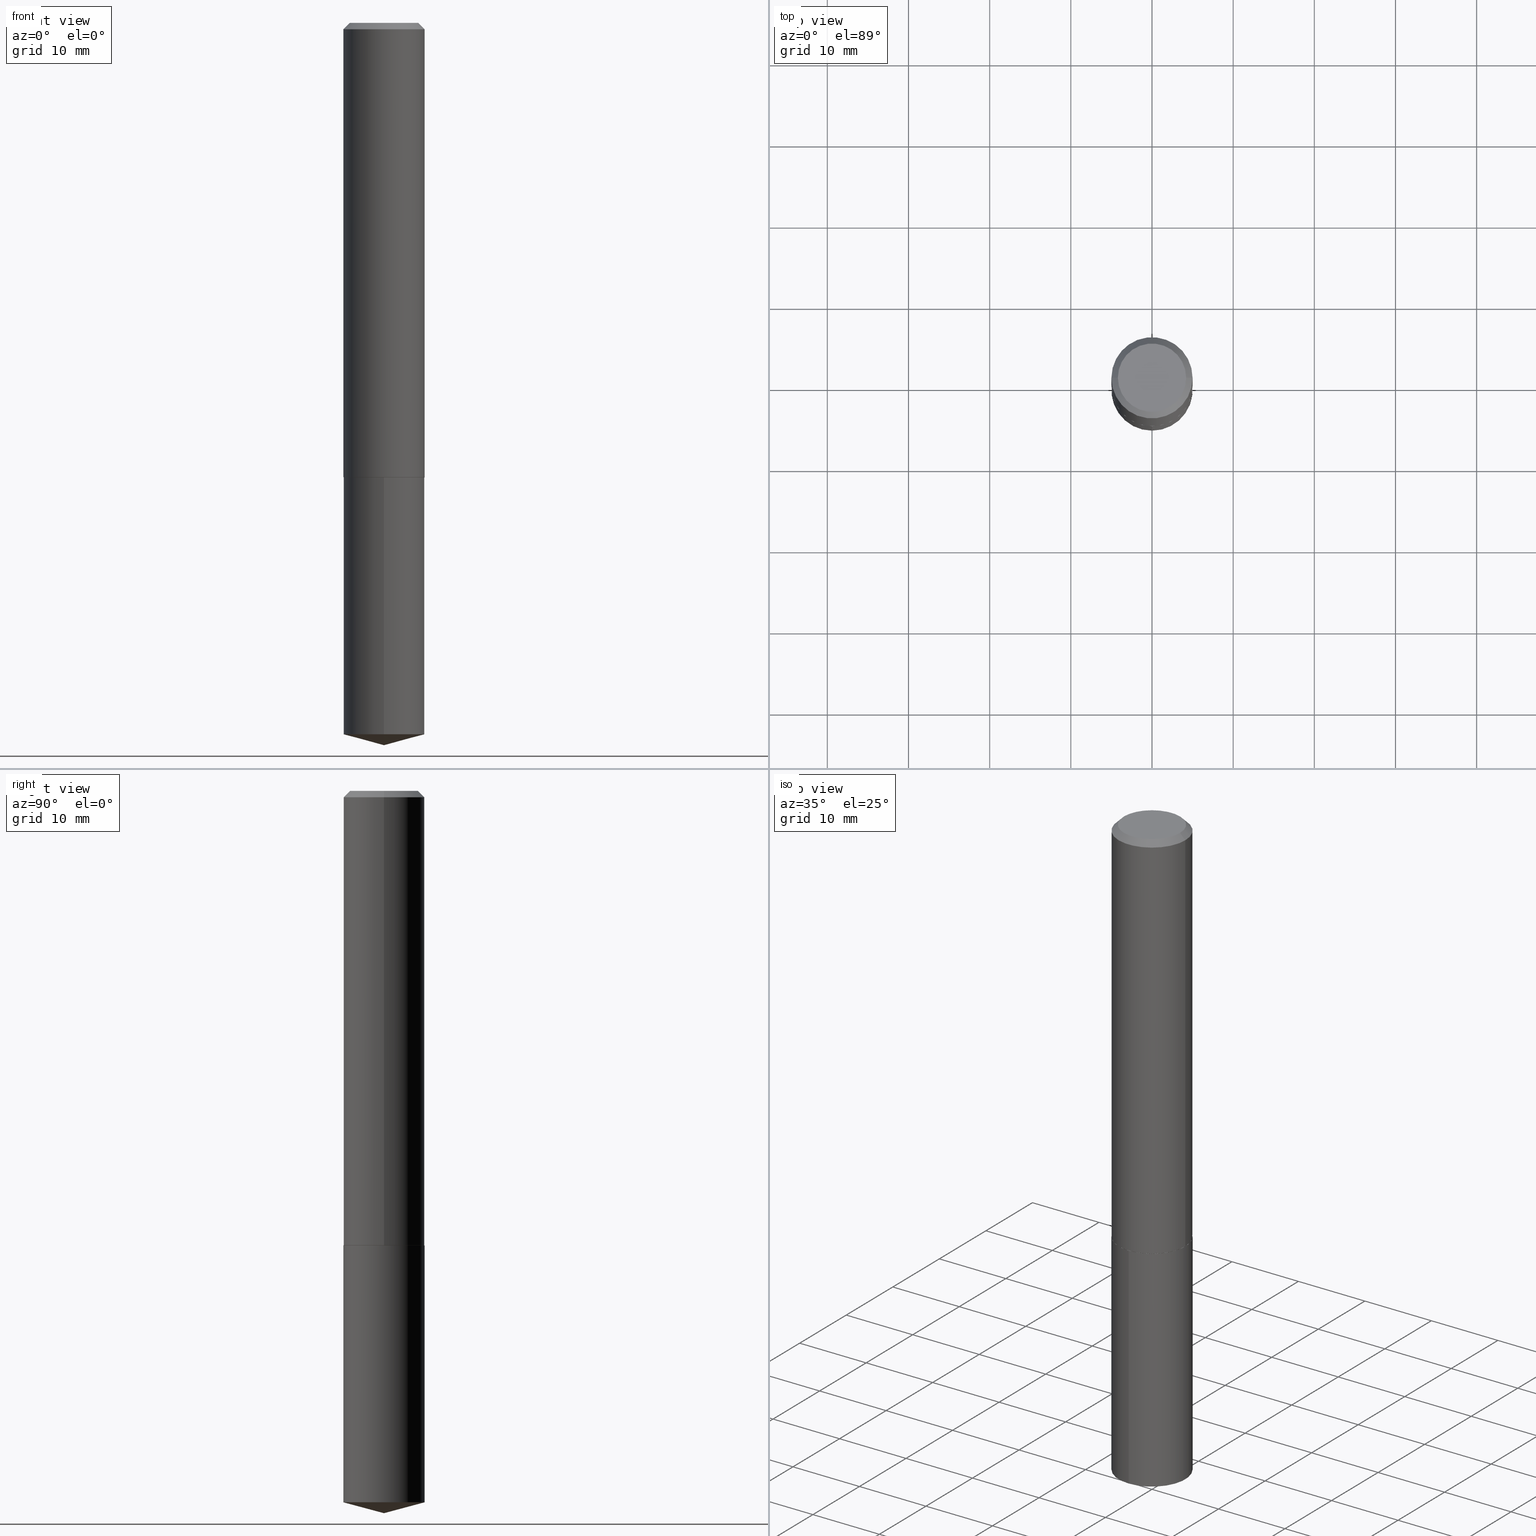
[diagram: canonical four-view strip — front | top / right | iso, engineering-drawing reading convention]
A machine part, canonical four-view strip (front | top / right | iso — engineering-drawing reading convention). The complete STEP part file that produces these views, byte-faithful:
ISO-10303-21;
HEADER;
FILE_DESCRIPTION (( 'STEP AP203' ),
    '1' );
FILE_NAME ('69035.STEP',
    '2024-04-23T14:32:00',
    ( '' ),
    ( '' ),
    'SwSTEP 2.0',
    'SolidWorks 2023',
    '' );
FILE_SCHEMA (( 'CONFIG_CONTROL_DESIGN' ));
ENDSEC;

DATA;
#1 = DIRECTION ( 'NONE',  ( -6.982962677686265922E-15, -1.000000000000000000, 3.510303681827636883E-15 ) ) ;
#2 = ADVANCED_FACE ( 'NONE', ( #202 ), #388, .F. ) ;
#3 = CYLINDRICAL_SURFACE ( 'NONE', #85, 0.1968500000000001915 ) ;
#4 = CARTESIAN_POINT ( 'NONE',  ( 5.391525076996369035E-29, -7.697668907747481548E-15, -2.204699999999999438 ) ) ;
#5 = CALENDAR_DATE ( 2024, 23, 4 ) ;
#6 = FACE_OUTER_BOUND ( 'NONE', #207, .T. ) ;
#7 = DIRECTION ( 'NONE',  ( -2.445468806185136877E-29, 3.491481338843145188E-15, 1.000000000000000000 ) ) ;
#8 = APPROVAL_STATUS ( 'not_yet_approved' ) ;
#9 = DIRECTION ( 'NONE',  ( -2.445468806185136597E-29, 3.491481338843145583E-15, 1.000000000000000000 ) ) ;
#10 = AXIS2_PLACEMENT_3D ( 'NONE', #104, #51, #142 ) ;
#11 = PERSON_AND_ORGANIZATION_ROLE ( 'creator' ) ;
#12 = APPROVAL_PERSON_ORGANIZATION ( #45, #171, #244 ) ;
#13 = FACE_OUTER_BOUND ( 'NONE', #126, .T. ) ;
#14 =( NAMED_UNIT ( * ) SI_UNIT ( $, .STERADIAN. ) SOLID_ANGLE_UNIT ( ) );
#15 = CARTESIAN_POINT ( 'NONE',  ( -0.1968500000000000250, 1.265487411263692705E-15, -0.03125000000000022898 ) ) ;
#16 = CONICAL_SURFACE ( 'NONE', #228, 0.1968500000000003303, 0.7853981633965604336 ) ;
#17 =( NAMED_UNIT ( * ) PLANE_ANGLE_UNIT ( ) SI_UNIT ( $, .RADIAN. ) );
#18 = AXIS2_PLACEMENT_3D ( 'NONE', #373, #278, #111 ) ;
#19 = CIRCLE ( 'NONE', #36, 0.1963500000000007739 ) ;
#20 = EDGE_CURVE ( 'NONE', #128, #374, #288, .T. ) ;
#21 = ORIENTED_EDGE ( 'NONE', *, *, #296, .F. ) ;
#22 = PLANE ( 'NONE',  #247 ) ;
#23 = APPLICATION_CONTEXT ( 'configuration controlled 3d designs of mechanical parts and assemblies' ) ;
#24 = ORIENTED_EDGE ( 'NONE', *, *, #242, .T. ) ;
#25 = ORIENTED_EDGE ( 'NONE', *, *, #283, .F. ) ;
#26 = LENGTH_MEASURE_WITH_UNIT ( LENGTH_MEASURE( 0.02539999999999999897 ), #382 );
#27 = CIRCLE ( 'NONE', #34, 0.1968500000000000250 ) ;
#28 = ADVANCED_BREP_SHAPE_REPRESENTATION ( '69035', ( #198, #86, #324 ), #302 ) ;
#29 = ORIENTED_EDGE ( 'NONE', *, *, #310, .T. ) ;
#30 = DIRECTION ( 'NONE',  ( -6.982962677686265133E-15, -1.000000000000000000, 2.775563112689116301E-15 ) ) ;
#31 = UNCERTAINTY_MEASURE_WITH_UNIT (LENGTH_MEASURE( 1.000000000000000082E-05 ), #287, 'distance_accuracy_value', 'NONE');
#32 = DIRECTION ( 'NONE',  ( -6.982962677686265133E-15, -1.000000000000000000, 4.163344669033674845E-15 ) ) ;
#33 = VERTEX_POINT ( 'NONE', #315 ) ;
#34 = AXIS2_PLACEMENT_3D ( 'NONE', #262, #240, #93 ) ;
#35 = DIRECTION ( 'NONE',  ( 1.000000000000000000, -6.982962677686266711E-15, 4.876184333594739131E-29 ) ) ;
#36 = AXIS2_PLACEMENT_3D ( 'NONE', #334, #158, #246 ) ;
#37 = CYLINDRICAL_SURFACE ( 'NONE', #89, 0.1968500000000000250 ) ;
#38 = PERSON_AND_ORGANIZATION ( #359, #54 ) ;
#39 = DIRECTION ( 'NONE',  ( 2.445539438207697217E-29, -3.491380189766713232E-15, -1.000000000000000000 ) ) ;
#40 = PRODUCT ( '69035', '69035', '', ( #216 ) ) ;
#41 = CARTESIAN_POINT ( 'NONE',  ( 0.000000000000000000, 0.000000000000000000, 0.000000000000000000 ) ) ;
#42 = ADVANCED_FACE ( 'NONE', ( #153 ), #37, .T. ) ;
#43 = DIRECTION ( 'NONE',  ( 6.863315791527691893E-15, 0.9659258262890693114, 0.2588190451025171313 ) ) ;
#44 = AXIS2_PLACEMENT_3D ( 'NONE', #84, #193, #269 ) ;
#45 = PERSON_AND_ORGANIZATION ( #359, #54 ) ;
#46 = EDGE_LOOP ( 'NONE', ( #384, #238, #237, #127 ) ) ;
#47 = DIRECTION ( 'NONE',  ( -6.982962677686265922E-15, -1.000000000000000000, 3.510303681827636883E-15 ) ) ;
#48 = APPROVAL_STATUS ( 'not_yet_approved' ) ;
#49 = APPROVAL_ROLE ( '' ) ;
#50 = CARTESIAN_POINT ( 'NONE',  ( 5.390302342593277355E-29, -7.695923167078060833E-15, -2.204199999999999715 ) ) ;
#51 = DIRECTION ( 'NONE',  ( -2.445468806185136597E-29, 3.491481338843145583E-15, 1.000000000000000000 ) ) ;
#52 = CC_DESIGN_PERSON_AND_ORGANIZATION_ASSIGNMENT ( #38, #11, ( #249 ) ) ;
#53 = CIRCLE ( 'NONE', #275, 0.1968500000000000250 ) ;
#54 = ORGANIZATION ( 'UNSPECIFIED', 'UNSPECIFIED', '' ) ;
#55 = LINE ( 'NONE', #139, #281 ) ;
#56 = CLOSED_SHELL ( 'NONE', ( #201, #312, #195, #379, #230, #74, #251, #147 ) ) ;
#57 = PRODUCT_DEFINITION_FORMATION_WITH_SPECIFIED_SOURCE ( 'ANY', '', #40, .NOT_KNOWN. ) ;
#58 = COORDINATED_UNIVERSAL_TIME_OFFSET ( 5, 0, .BEHIND. ) ;
#59 = ORIENTED_EDGE ( 'NONE', *, *, #94, .T. ) ;
#60 = CARTESIAN_POINT ( 'NONE',  ( 0.1968500000000000250, -1.483704994941390709E-15, -0.03125000000000022898 ) ) ;
#61 = APPROVAL ( #48, 'UNSPECIFIED' ) ;
#62 = APPROVAL_PERSON_ORGANIZATION ( #300, #183, #49 ) ;
#63 = DIRECTION ( 'NONE',  ( -2.445468806185136597E-29, 3.491481338843145583E-15, 1.000000000000000000 ) ) ;
#64 = CARTESIAN_POINT ( 'NONE',  ( 5.391525076996369035E-29, -7.697668907747481548E-15, -2.204699999999999438 ) ) ;
#65 = VERTEX_POINT ( 'NONE', #148 ) ;
#66 = EDGE_CURVE ( 'NONE', #340, #378, #27, .T. ) ;
#67 = DIRECTION ( 'NONE',  ( 1.000000000000000000, -6.982962677686266711E-15, 4.876176775795935793E-29 ) ) ;
#68 = EDGE_LOOP ( 'NONE', ( #138, #122, #59, #185 ) ) ;
#69 = DIRECTION ( 'NONE',  ( -2.445539438207697497E-29, 3.491380189766713232E-15, 1.000000000000000000 ) ) ;
#70 = VECTOR ( 'NONE', #170, 39.37007874015748143 ) ;
#71 = DIRECTION ( 'NONE',  ( 0.000000000000000000, 0.000000000000000000, 1.000000000000000000 ) ) ;
#72 = ORIENTED_EDGE ( 'NONE', *, *, #94, .F. ) ;
#73 = DIRECTION ( 'NONE',  ( -1.000000000000000000, 6.982962677686265922E-15, -4.876176775795935793E-29 ) ) ;
#74 = ADVANCED_FACE ( 'NONE', ( #352 ), #3, .T. ) ;
#75 = LINE ( 'NONE', #307, #152 ) ;
#76 = CC_DESIGN_DATE_AND_TIME_ASSIGNMENT ( #339, #162, ( #294 ) ) ;
#77 = FACE_OUTER_BOUND ( 'NONE', #390, .T. ) ;
#78 = VECTOR ( 'NONE', #110, 39.37007874015748143 ) ;
#79 = AXIS2_PLACEMENT_3D ( 'NONE', #335, #229, #196 ) ;
#80 = LOCAL_TIME ( 10, 32, 0.000000000000000000, #58 ) ;
#81 = CARTESIAN_POINT ( 'NONE',  ( 0.1968500000000003303, -9.070519370180605597E-15, -2.204199999999999715 ) ) ;
#82 = ADVANCED_FACE ( 'NONE', ( #256 ), #311, .T. ) ;
#83 = FACE_OUTER_BOUND ( 'NONE', #150, .T. ) ;
#84 = CARTESIAN_POINT ( 'NONE',  ( -5.839929314523301814E-48, 8.337871319499262079E-34, 2.388061258337385659E-19 ) ) ;
#85 = AXIS2_PLACEMENT_3D ( 'NONE', #357, #318, #67 ) ;
#86 = MANIFOLD_SOLID_BREP ( 'Body-Move/Copy2[2]', #56 ) ;
#87 = APPLICATION_PROTOCOL_DEFINITION ( 'international standard', 'config_control_design', 1994, #369 ) ;
#88 = ORIENTED_EDGE ( 'NONE', *, *, #168, .F. ) ;
#89 = AXIS2_PLACEMENT_3D ( 'NONE', #124, #322, #32 ) ;
#90 = CC_DESIGN_APPROVAL ( #183, ( #249 ) ) ;
#91 = CARTESIAN_POINT ( 'NONE',  ( -1.374596203102487571E-15, -0.1968500000000076855, -2.204699999999998550 ) ) ;
#92 = DIRECTION ( 'NONE',  ( -6.745023994389837555E-15, -0.9659258262890675351, 0.2588190451025239036 ) ) ;
#93 = DIRECTION ( 'NONE',  ( -6.982962677686265133E-15, -1.000000000000000000, 4.163344669033674845E-15 ) ) ;
#94 = EDGE_CURVE ( 'NONE', #386, #320, #114, .T. ) ;
#95 = DIRECTION ( 'NONE',  ( -6.982962677686265133E-15, -1.000000000000000000, 4.163344669033674845E-15 ) ) ;
#96 = VERTEX_POINT ( 'NONE', #177 ) ;
#97 = CARTESIAN_POINT ( 'NONE',  ( -0.1655999999999999972, 1.210933015344269141E-15, 2.388061258254609190E-19 ) ) ;
#98 = PERSON_AND_ORGANIZATION_ROLE ( 'design_supplier' ) ;
#99 = VERTEX_POINT ( 'NONE', #102 ) ;
#100 = EDGE_CURVE ( 'NONE', #374, #65, #293, .T. ) ;
#101 = CONICAL_SURFACE ( 'NONE', #204, 0.1968500000000000250, 0.7853981633974447263 ) ;
#102 = CARTESIAN_POINT ( 'NONE',  ( 0.1963500000000007739, -9.068773629511186460E-15, -2.204700000000000326 ) ) ;
#103 = DIRECTION ( 'NONE',  ( 1.000000000000000000, -6.982962677686271444E-15, 0.000000000000000000 ) ) ;
#104 = CARTESIAN_POINT ( 'NONE',  ( 5.390302342593277355E-29, -7.695923167078060833E-15, -2.204199999999999715 ) ) ;
#105 = COORDINATED_UNIVERSAL_TIME_OFFSET ( 5, 0, .BEHIND. ) ;
#106 = DIRECTION ( 'NONE',  ( -2.445468806185136597E-29, 3.491481338843145583E-15, 1.000000000000000000 ) ) ;
#107 = LOCAL_TIME ( 10, 32, 0.000000000000000000, #385 ) ;
#108 = COORDINATED_UNIVERSAL_TIME_OFFSET ( 5, 0, .BEHIND. ) ;
#109 = PRODUCT_DEFINITION_SHAPE ( 'NONE', 'NONE',  #249 ) ;
#110 = DIRECTION ( 'NONE',  ( -2.445539438207697497E-29, 3.491380189766713232E-15, 1.000000000000000000 ) ) ;
#111 = DIRECTION ( 'NONE',  ( 1.000000000000000000, -6.982962677686271444E-15, 0.000000000000000000 ) ) ;
#112 = DIMENSIONAL_EXPONENTS ( 1.000000000000000000, 0.000000000000000000, 0.000000000000000000, 0.000000000000000000, 0.000000000000000000, 0.000000000000000000, 0.000000000000000000 ) ;
#113 = CC_DESIGN_PERSON_AND_ORGANIZATION_ASSIGNMENT ( #190, #241, ( #57 ) ) ;
#114 = CIRCLE ( 'NONE', #254, 0.1968500000000000250 ) ;
#115 = LOCAL_TIME ( 10, 32, 0.000000000000000000, #105 ) ;
#116 = ORIENTED_EDGE ( 'NONE', *, *, #145, .T. ) ;
#117 = APPROVAL_ROLE ( '' ) ;
#118 = AXIS2_PLACEMENT_3D ( 'NONE', #257, #214, #1 ) ;
#119 = ADVANCED_FACE ( 'NONE', ( #156 ), #267, .T. ) ;
#120 = PERSON_AND_ORGANIZATION ( #359, #54 ) ;
#121 = CARTESIAN_POINT ( 'NONE',  ( 8.568925637535951311E-29, -1.223344704692358738E-14, -3.503899999999999793 ) ) ;
#122 = ORIENTED_EDGE ( 'NONE', *, *, #279, .T. ) ;
#123 = AXIS2_PLACEMENT_3D ( 'NONE', #64, #39, #186 ) ;
#124 = CARTESIAN_POINT ( 'NONE',  ( 5.391525076996369035E-29, -7.697668907747481548E-15, -2.204699999999999438 ) ) ;
#125 = VERTEX_POINT ( 'NONE', #97 ) ;
#126 = EDGE_LOOP ( 'NONE', ( #389, #319, #144, #88 ) ) ;
#127 = ORIENTED_EDGE ( 'NONE', *, *, #332, .T. ) ;
#128 = VERTEX_POINT ( 'NONE', #121 ) ;
#129 = EDGE_CURVE ( 'NONE', #33, #99, #140, .T. ) ;
#130 = CARTESIAN_POINT ( 'NONE',  ( -2.919964657261650907E-48, 4.168935659749631040E-34, 1.194030629168692829E-19 ) ) ;
#131 = DIRECTION ( 'NONE',  ( 1.000000000000000000, 0.000000000000000000, 0.000000000000000000 ) ) ;
#132 = CARTESIAN_POINT ( 'NONE',  ( 5.391525076996369035E-29, -7.697668907747481548E-15, -2.204699999999999438 ) ) ;
#133 = DATE_TIME_ROLE ( 'creation_date' ) ;
#134 = DIRECTION ( 'NONE',  ( -2.445468806185136877E-29, 3.491481338843145188E-15, 1.000000000000000000 ) ) ;
#135 = CALENDAR_DATE ( 2024, 23, 4 ) ;
#136 = DIRECTION ( 'NONE',  ( -2.445468806185136597E-29, 3.491481338843145583E-15, 1.000000000000000000 ) ) ;
#137 = EDGE_CURVE ( 'NONE', #378, #340, #53, .T. ) ;
#138 = ORIENTED_EDGE ( 'NONE', *, *, #145, .F. ) ;
#139 = CARTESIAN_POINT ( 'NONE',  ( -0.1968500000000001915, 1.398703375343758577E-15, -9.682923725166790684E-30 ) ) ;
#140 = CIRCLE ( 'NONE', #180, 0.1963500000000007739 ) ;
#141 = PERSON_AND_ORGANIZATION ( #359, #54 ) ;
#142 = DIRECTION ( 'NONE',  ( 1.000000000000000000, -6.982962677686271444E-15, 0.000000000000000000 ) ) ;
#143 = VECTOR ( 'NONE', #309, 39.37007874015748143 ) ;
#144 = ORIENTED_EDGE ( 'NONE', *, *, #188, .T. ) ;
#145 = EDGE_CURVE ( 'NONE', #361, #125, #285, .T. ) ;
#146 = CIRCLE ( 'NONE', #376, 0.1968500000000003303 ) ;
#147 = ADVANCED_FACE ( 'NONE', ( #295 ), #154, .F. ) ;
#148 = CARTESIAN_POINT ( 'NONE',  ( 1.398703375343841999E-15, 0.1968499999999880623, -3.451154201469933902 ) ) ;
#149 = ORIENTED_EDGE ( 'NONE', *, *, #188, .F. ) ;
#150 = EDGE_LOOP ( 'NONE', ( #29, #213, #209, #149 ) ) ;
#151 = ORIENTED_EDGE ( 'NONE', *, *, #66, .T. ) ;
#152 = VECTOR ( 'NONE', #134, 39.37007874015748143 ) ;
#153 = FACE_OUTER_BOUND ( 'NONE', #345, .T. ) ;
#154 = PLANE ( 'NONE',  #337 ) ;
#155 = DATE_AND_TIME ( #5, #205 ) ;
#156 = FACE_OUTER_BOUND ( 'NONE', #227, .T. ) ;
#157 = PERSON_AND_ORGANIZATION ( #359, #54 ) ;
#158 = DIRECTION ( 'NONE',  ( -2.445468806185136597E-29, 3.491481338843145583E-15, 1.000000000000000000 ) ) ;
#159 = EDGE_CURVE ( 'NONE', #65, #374, #367, .T. ) ;
#160 = FACE_OUTER_BOUND ( 'NONE', #46, .T. ) ;
#161 = CARTESIAN_POINT ( 'NONE',  ( 7.642090019328607917E-31, -1.091087918388491006E-16, -0.03125000000000022898 ) ) ;
#162 = DATE_TIME_ROLE ( 'classification_date' ) ;
#163 = DIRECTION ( 'NONE',  ( -6.982962677686265133E-15, -1.000000000000000000, 2.775563112689116301E-15 ) ) ;
#164 = CC_DESIGN_PERSON_AND_ORGANIZATION_ASSIGNMENT ( #157, #328, ( #40 ) ) ;
#165 = CARTESIAN_POINT ( 'NONE',  ( 8.439777984610776122E-29, -1.204951441421109613E-14, -3.451154201469933458 ) ) ;
#166 = VECTOR ( 'NONE', #43, 39.37007874015748854 ) ;
#167 = APPROVAL_DATE_TIME ( #377, #61 ) ;
#168 = EDGE_CURVE ( 'NONE', #96, #179, #222, .T. ) ;
#169 = ORIENTED_EDGE ( 'NONE', *, *, #305, .F. ) ;
#170 = DIRECTION ( 'NONE',  ( -2.445539438207697497E-29, 3.491380189766713232E-15, 1.000000000000000000 ) ) ;
#171 = APPROVAL ( #8, 'UNSPECIFIED' ) ;
#172 = AXIS2_PLACEMENT_3D ( 'NONE', #290, #69, #30 ) ;
#173 = EDGE_LOOP ( 'NONE', ( #356, #368 ) ) ;
#174 = DIRECTION ( 'NONE',  ( 1.000000000000000000, -6.982962677686265922E-15, 0.000000000000000000 ) ) ;
#175 = CARTESIAN_POINT ( 'NONE',  ( -5.839929314523301814E-48, 8.337871319499262079E-34, 2.388061258337385659E-19 ) ) ;
#176 = ORIENTED_EDGE ( 'NONE', *, *, #168, .T. ) ;
#177 = CARTESIAN_POINT ( 'NONE',  ( -0.1968500000000003303, -6.297219791734301467E-15, -2.204199999999999715 ) ) ;
#178 = ORIENTED_EDGE ( 'NONE', *, *, #242, .F. ) ;
#179 = VERTEX_POINT ( 'NONE', #191 ) ;
#180 = AXIS2_PLACEMENT_3D ( 'NONE', #182, #231, #350 ) ;
#181 = CIRCLE ( 'NONE', #79, 0.1968500000000000250 ) ;
#182 = CARTESIAN_POINT ( 'NONE',  ( 5.391525076996371277E-29, -7.697668907747483125E-15, -2.204700000000000326 ) ) ;
#183 = APPROVAL ( #184, 'UNSPECIFIED' ) ;
#184 = APPROVAL_STATUS ( 'not_yet_approved' ) ;
#185 = ORIENTED_EDGE ( 'NONE', *, *, #289, .F. ) ;
#186 = DIRECTION ( 'NONE',  ( 6.982962677686265922E-15, 1.000000000000000000, -3.491380189766713232E-15 ) ) ;
#187 = LINE ( 'NONE', #15, #330 ) ;
#188 = EDGE_CURVE ( 'NONE', #99, #179, #303, .T. ) ;
#189 = CARTESIAN_POINT ( 'NONE',  ( 1.398703375343810839E-15, 0.1968499999999923367, -2.204700000000000326 ) ) ;
#190 = PERSON_AND_ORGANIZATION ( #359, #54 ) ;
#191 = CARTESIAN_POINT ( 'NONE',  ( 0.1968500000000003303, -9.070519370180605597E-15, -2.204199999999999715 ) ) ;
#192 = DIRECTION ( 'NONE',  ( -1.000000000000000000, 6.982962677686265922E-15, 0.000000000000000000 ) ) ;
#193 = DIRECTION ( 'NONE',  ( -2.445468806185136597E-29, 3.491481338843145583E-15, 1.000000000000000000 ) ) ;
#194 = VECTOR ( 'NONE', #92, 39.37007874015748854 ) ;
#195 = ADVANCED_FACE ( 'NONE', ( #83 ), #16, .T. ) ;
#196 = DIRECTION ( 'NONE',  ( 1.000000000000000000, -6.982962677686265922E-15, 0.000000000000000000 ) ) ;
#197 = AXIS2_PLACEMENT_3D ( 'NONE', #132, #236, #354 ) ;
#198 = MANIFOLD_SOLID_BREP ( 'Body-Move/Copy2[1]', #387 ) ;
#199 = DIRECTION ( 'NONE',  ( 1.000000000000000000, -6.982962677686265922E-15, 4.876176775795935793E-29 ) ) ;
#200 = FACE_OUTER_BOUND ( 'NONE', #173, .T. ) ;
#201 = ADVANCED_FACE ( 'NONE', ( #219 ), #232, .T. ) ;
#202 = FACE_OUTER_BOUND ( 'NONE', #347, .T. ) ;
#203 = ORIENTED_EDGE ( 'NONE', *, *, #266, .T. ) ;
#204 = AXIS2_PLACEMENT_3D ( 'NONE', #161, #215, #192 ) ;
#205 = LOCAL_TIME ( 10, 32, 0.000000000000000000, #108 ) ;
#206 = ORIENTED_EDGE ( 'NONE', *, *, #159, .T. ) ;
#207 = EDGE_LOOP ( 'NONE', ( #371, #314, #72, #21 ) ) ;
#208 = ORIENTED_EDGE ( 'NONE', *, *, #305, .T. ) ;
#209 = ORIENTED_EDGE ( 'NONE', *, *, #258, .F. ) ;
#210 = ADVANCED_FACE ( 'NONE', ( #77 ), #316, .T. ) ;
#211 = DIRECTION ( 'NONE',  ( -2.445539438207697497E-29, 3.491380189766713232E-15, 1.000000000000000000 ) ) ;
#212 = SECURITY_CLASSIFICATION_LEVEL ( 'unclassified' ) ;
#213 = ORIENTED_EDGE ( 'NONE', *, *, #372, .T. ) ;
#214 = DIRECTION ( 'NONE',  ( -2.445539438207697497E-29, 3.491380189766713232E-15, 1.000000000000000000 ) ) ;
#215 = DIRECTION ( 'NONE',  ( 2.445468806185136597E-29, -3.491481338843145583E-15, -1.000000000000000000 ) ) ;
#216 = MECHANICAL_CONTEXT ( 'NONE', #369, 'mechanical' ) ;
#217 = DIRECTION ( 'NONE',  ( 0.7071067811859196306, -2.468850131075680327E-15, 0.7071067811871752928 ) ) ;
#218 = DATE_AND_TIME ( #274, #235 ) ;
#219 = FACE_OUTER_BOUND ( 'NONE', #68, .T. ) ;
#220 = CARTESIAN_POINT ( 'NONE',  ( -0.1968500000000000250, -2.503812604114694813E-15, -0.03125000000000022898 ) ) ;
#221 = LINE ( 'NONE', #189, #78 ) ;
#222 = CIRCLE ( 'NONE', #10, 0.1968500000000003303 ) ;
#223 = ORIENTED_EDGE ( 'NONE', *, *, #20, .F. ) ;
#224 = DIRECTION ( 'NONE',  ( -0.7071067811859196306, 7.493145998868083818E-15, 0.7071067811871752928 ) ) ;
#225 = EDGE_LOOP ( 'NONE', ( #203, #116 ) ) ;
#226 = CARTESIAN_POINT ( 'NONE',  ( 3.249547856571452618E-29, -1.076510220116820610E-14, -2.204699999999999882 ) ) ;
#227 = EDGE_LOOP ( 'NONE', ( #178, #206, #261, #353 ) ) ;
#228 = AXIS2_PLACEMENT_3D ( 'NONE', #50, #106, #103 ) ;
#229 = DIRECTION ( 'NONE',  ( -2.445468806185136597E-29, 3.491481338843145583E-15, 1.000000000000000000 ) ) ;
#230 = ADVANCED_FACE ( 'NONE', ( #13 ), #308, .T. ) ;
#231 = DIRECTION ( 'NONE',  ( -2.445468806185136597E-29, 3.491481338843145583E-15, 1.000000000000000000 ) ) ;
#232 = CONICAL_SURFACE ( 'NONE', #381, 0.1968500000000000250, 0.7853981633974447263 ) ;
#233 = AXIS2_PLACEMENT_3D ( 'NONE', #370, #136, #365 ) ;
#234 = ORIENTED_EDGE ( 'NONE', *, *, #159, .F. ) ;
#235 = LOCAL_TIME ( 10, 32, 0.000000000000000000, #268 ) ;
#236 = DIRECTION ( 'NONE',  ( -2.445539438207697497E-29, 3.491380189766713232E-15, 1.000000000000000000 ) ) ;
#237 = ORIENTED_EDGE ( 'NONE', *, *, #289, .T. ) ;
#238 = ORIENTED_EDGE ( 'NONE', *, *, #266, .F. ) ;
#239 = ORIENTED_EDGE ( 'NONE', *, *, #332, .F. ) ;
#240 = DIRECTION ( 'NONE',  ( -2.445539438207697497E-29, 3.491380189766713232E-15, 1.000000000000000000 ) ) ;
#241 = PERSON_AND_ORGANIZATION_ROLE ( 'creator' ) ;
#242 = EDGE_CURVE ( 'NONE', #65, #340, #221, .T. ) ;
#243 = LINE ( 'NONE', #362, #166 ) ;
#244 = APPROVAL_ROLE ( '' ) ;
#245 = DIRECTION ( 'NONE',  ( -2.445539438207697497E-29, 3.491380189766713232E-15, 1.000000000000000000 ) ) ;
#246 = DIRECTION ( 'NONE',  ( 1.000000000000000000, -6.982962677686262766E-15, 0.000000000000000000 ) ) ;
#247 = AXIS2_PLACEMENT_3D ( 'NONE', #226, #343, #199 ) ;
#248 = CYLINDRICAL_SURFACE ( 'NONE', #233, 0.1968500000000001915 ) ;
#249 = PRODUCT_DEFINITION ( 'UNKNOWN', '', #57, #326 ) ;
#250 = DIRECTION ( 'NONE',  ( -1.000000000000000000, 6.982962677686265922E-15, 0.000000000000000000 ) ) ;
#251 = ADVANCED_FACE ( 'NONE', ( #160 ), #101, .T. ) ;
#252 = ORIENTED_EDGE ( 'NONE', *, *, #137, .F. ) ;
#253 = SHAPE_DEFINITION_REPRESENTATION ( #109, #28 ) ;
#254 = AXIS2_PLACEMENT_3D ( 'NONE', #348, #63, #174 ) ;
#255 = CC_DESIGN_SECURITY_CLASSIFICATION ( #294, ( #57 ) ) ;
#256 = FACE_OUTER_BOUND ( 'NONE', #297, .T. ) ;
#257 = CARTESIAN_POINT ( 'NONE',  ( -8.771231032928173355E-28, 1.252222429326490773E-13, 35.86617874015747987 ) ) ;
#258 = EDGE_CURVE ( 'NONE', #179, #96, #146, .T. ) ;
#259 = ORIENTED_EDGE ( 'NONE', *, *, #137, .T. ) ;
#260 = CC_DESIGN_APPROVAL ( #171, ( #57 ) ) ;
#261 = ORIENTED_EDGE ( 'NONE', *, *, #342, .T. ) ;
#262 = CARTESIAN_POINT ( 'NONE',  ( 5.391525076996369035E-29, -7.697668907747481548E-15, -2.204699999999999438 ) ) ;
#263 = ORIENTED_EDGE ( 'NONE', *, *, #100, .F. ) ;
#264 = CARTESIAN_POINT ( 'NONE',  ( 8.568614192695670475E-29, -1.223389305366120594E-14, -3.503899999999999793 ) ) ;
#265 = PERSON_AND_ORGANIZATION ( #359, #54 ) ;
#266 = EDGE_CURVE ( 'NONE', #125, #361, #358, .T. ) ;
#267 = CYLINDRICAL_SURFACE ( 'NONE', #197, 0.1968500000000000250 ) ;
#268 = COORDINATED_UNIVERSAL_TIME_OFFSET ( 5, 0, .BEHIND. ) ;
#269 = DIRECTION ( 'NONE',  ( 1.000000000000000000, -6.982962677686266711E-15, 4.876184333594739131E-29 ) ) ;
#270 = CC_DESIGN_PERSON_AND_ORGANIZATION_ASSIGNMENT ( #265, #360, ( #294 ) ) ;
#271 = CALENDAR_DATE ( 2024, 23, 4 ) ;
#272 = CARTESIAN_POINT ( 'NONE',  ( 0.1968500000000000250, -1.459597822700175121E-15, -0.03125000000000022898 ) ) ;
#273 = DIRECTION ( 'NONE',  ( 1.000000000000000000, -6.982962677686271444E-15, 0.000000000000000000 ) ) ;
#274 = CALENDAR_DATE ( 2024, 23, 4 ) ;
#275 = AXIS2_PLACEMENT_3D ( 'NONE', #4, #211, #95 ) ;
#276 = APPROVAL_PERSON_ORGANIZATION ( #120, #61, #117 ) ;
#277 = DIRECTION ( 'NONE',  ( 2.445468806185136597E-29, -3.491481338843145583E-15, -1.000000000000000000 ) ) ;
#278 = DIRECTION ( 'NONE',  ( -2.445468806185136597E-29, 3.491481338843145583E-15, 1.000000000000000000 ) ) ;
#279 = EDGE_CURVE ( 'NONE', #361, #386, #327, .T. ) ;
#280 = LINE ( 'NONE', #380, #333 ) ;
#281 = VECTOR ( 'NONE', #7, 39.37007874015748143 ) ;
#282 = EDGE_LOOP ( 'NONE', ( #25, #176, #286, #239 ) ) ;
#283 = EDGE_CURVE ( 'NONE', #96, #320, #55, .T. ) ;
#284 = CALENDAR_DATE ( 2024, 23, 4 ) ;
#285 = CIRCLE ( 'NONE', #344, 0.1655999999999999972 ) ;
#286 = ORIENTED_EDGE ( 'NONE', *, *, #296, .T. ) ;
#287 =( CONVERSION_BASED_UNIT ( 'INCH', #26 ) LENGTH_UNIT ( ) NAMED_UNIT ( #112 ) );
#288 = LINE ( 'NONE', #264, #194 ) ;
#289 = EDGE_CURVE ( 'NONE', #125, #320, #187, .T. ) ;
#290 = CARTESIAN_POINT ( 'NONE',  ( 8.439777984610776122E-29, -1.204951441421109613E-14, -3.451154201469933458 ) ) ;
#291 = ORIENTED_EDGE ( 'NONE', *, *, #100, .T. ) ;
#292 = DIRECTION ( 'NONE',  ( -2.445468806185136597E-29, 3.491481338843145583E-15, 1.000000000000000000 ) ) ;
#293 = CIRCLE ( 'NONE', #172, 0.1968500000000000250 ) ;
#294 = SECURITY_CLASSIFICATION ( '', '', #212 ) ;
#295 = FACE_OUTER_BOUND ( 'NONE', #225, .T. ) ;
#296 = EDGE_CURVE ( 'NONE', #179, #386, #75, .T. ) ;
#297 = EDGE_LOOP ( 'NONE', ( #169, #321, #234 ) ) ;
#298 = ORIENTED_EDGE ( 'NONE', *, *, #342, .F. ) ;
#299 = CARTESIAN_POINT ( 'NONE',  ( -8.771231032928173355E-28, 1.252222429326490773E-13, 35.86617874015747987 ) ) ;
#300 = PERSON_AND_ORGANIZATION ( #359, #54 ) ;
#301 = AXIS2_PLACEMENT_3D ( 'NONE', #299, #306, #47 ) ;
#302 =( GEOMETRIC_REPRESENTATION_CONTEXT ( 3 ) GLOBAL_UNCERTAINTY_ASSIGNED_CONTEXT ( ( #31 ) ) GLOBAL_UNIT_ASSIGNED_CONTEXT ( ( #287, #17, #14 ) ) REPRESENTATION_CONTEXT ( 'NONE', 'WORKASPACE' ) );
#303 = LINE ( 'NONE', #81, #351 ) ;
#304 = APPLICATION_PROTOCOL_DEFINITION ( 'international standard', 'config_control_design', 1994, #23 ) ;
#305 = EDGE_CURVE ( 'NONE', #128, #65, #243, .T. ) ;
#306 = DIRECTION ( 'NONE',  ( -2.445539438207697497E-29, 3.491380189766713232E-15, 1.000000000000000000 ) ) ;
#307 = CARTESIAN_POINT ( 'NONE',  ( 0.1968500000000001915, -1.374596203102542989E-15, 9.598753983154309266E-30 ) ) ;
#308 = CONICAL_SURFACE ( 'NONE', #18, 0.1968500000000003303, 0.7853981633965604336 ) ;
#309 = DIRECTION ( 'NONE',  ( 0.7071067811865450192, -7.319954787623246579E-15, -0.7071067811865500152 ) ) ;
#310 = EDGE_CURVE ( 'NONE', #99, #33, #19, .T. ) ;
#311 = CONICAL_SURFACE ( 'NONE', #118, 146.9311341562551547, 1.308996938995747428 ) ;
#312 = ADVANCED_FACE ( 'NONE', ( #6 ), #248, .T. ) ;
#313 = LINE ( 'NONE', #91, #70 ) ;
#314 = ORIENTED_EDGE ( 'NONE', *, *, #283, .T. ) ;
#315 = CARTESIAN_POINT ( 'NONE',  ( -0.1963500000000007739, -6.299869018908411880E-15, -2.204700000000000326 ) ) ;
#316 = CONICAL_SURFACE ( 'NONE', #301, 146.9311341562551547, 1.308996938995747428 ) ;
#317 = CC_DESIGN_APPROVAL ( #61, ( #294 ) ) ;
#318 = DIRECTION ( 'NONE',  ( -2.445468806185136597E-29, 3.491481338843145583E-15, 1.000000000000000000 ) ) ;
#319 = ORIENTED_EDGE ( 'NONE', *, *, #129, .T. ) ;
#320 = VERTEX_POINT ( 'NONE', #220 ) ;
#321 = ORIENTED_EDGE ( 'NONE', *, *, #20, .T. ) ;
#322 = DIRECTION ( 'NONE',  ( -2.445539438207697497E-29, 3.491380189766713232E-15, 1.000000000000000000 ) ) ;
#323 = AXIS2_PLACEMENT_3D ( 'NONE', #165, #245, #163 ) ;
#324 = AXIS2_PLACEMENT_3D ( 'NONE', #41, #71, #131 ) ;
#325 = DIRECTION ( 'NONE',  ( 2.438088387897960049E-29, -3.491481338843145188E-15, -1.000000000000000000 ) ) ;
#326 = DESIGN_CONTEXT ( 'detailed design', #23, 'design' ) ;
#327 = LINE ( 'NONE', #272, #143 ) ;
#328 = PERSON_AND_ORGANIZATION_ROLE ( 'design_owner' ) ;
#329 = CARTESIAN_POINT ( 'NONE',  ( 7.642090019328607917E-31, -1.091087918388491006E-16, -0.03125000000000022898 ) ) ;
#330 = VECTOR ( 'NONE', #363, 39.37007874015748143 ) ;
#331 = APPROVAL_DATE_TIME ( #355, #171 ) ;
#332 = EDGE_CURVE ( 'NONE', #320, #386, #181, .T. ) ;
#333 = VECTOR ( 'NONE', #224, 39.37007874015748854 ) ;
#334 = CARTESIAN_POINT ( 'NONE',  ( 5.391525076996371277E-29, -7.697668907747483125E-15, -2.204700000000000326 ) ) ;
#335 = CARTESIAN_POINT ( 'NONE',  ( 7.642090019328607917E-31, -1.091087918388491006E-16, -0.03125000000000022898 ) ) ;
#336 = CARTESIAN_POINT ( 'NONE',  ( 5.390302342593277355E-29, -7.695923167078060833E-15, -2.204199999999999715 ) ) ;
#337 = AXIS2_PLACEMENT_3D ( 'NONE', #130, #325, #73 ) ;
#338 = CARTESIAN_POINT ( 'NONE',  ( -1.374596203102457792E-15, -0.1968500000000121264, -3.451154201469932570 ) ) ;
#339 = DATE_AND_TIME ( #284, #80 ) ;
#340 = VERTEX_POINT ( 'NONE', #346 ) ;
#341 = CARTESIAN_POINT ( 'NONE',  ( -1.374596203102487571E-15, -0.1968500000000076855, -2.204699999999998550 ) ) ;
#342 = EDGE_CURVE ( 'NONE', #374, #378, #313, .T. ) ;
#343 = DIRECTION ( 'NONE',  ( -2.438088387897960049E-29, 3.491481338843145188E-15, 1.000000000000000000 ) ) ;
#344 = AXIS2_PLACEMENT_3D ( 'NONE', #175, #292, #35 ) ;
#345 = EDGE_LOOP ( 'NONE', ( #291, #24, #252, #298 ) ) ;
#346 = CARTESIAN_POINT ( 'NONE',  ( 1.398703375343841801E-15, 0.1968499999999923367, -2.204700000000000326 ) ) ;
#347 = EDGE_LOOP ( 'NONE', ( #259, #151 ) ) ;
#348 = CARTESIAN_POINT ( 'NONE',  ( 7.642090019328607917E-31, -1.091087918388491006E-16, -0.03125000000000022898 ) ) ;
#349 = CC_DESIGN_PERSON_AND_ORGANIZATION_ASSIGNMENT ( #141, #98, ( #57 ) ) ;
#350 = DIRECTION ( 'NONE',  ( 1.000000000000000000, -6.982962677686262766E-15, 0.000000000000000000 ) ) ;
#351 = VECTOR ( 'NONE', #217, 39.37007874015748854 ) ;
#352 = FACE_OUTER_BOUND ( 'NONE', #282, .T. ) ;
#353 = ORIENTED_EDGE ( 'NONE', *, *, #66, .F. ) ;
#354 = DIRECTION ( 'NONE',  ( -6.982962677686265133E-15, -1.000000000000000000, 4.163344669033674845E-15 ) ) ;
#355 = DATE_AND_TIME ( #271, #115 ) ;
#356 = ORIENTED_EDGE ( 'NONE', *, *, #310, .F. ) ;
#357 = CARTESIAN_POINT ( 'NONE',  ( 0.000000000000000000, 0.000000000000000000, 0.000000000000000000 ) ) ;
#358 = CIRCLE ( 'NONE', #44, 0.1655999999999999972 ) ;
#359 = PERSON ( 'UNSPECIFIED', 'UNSPECIFIED', 'UNSPECIFIED', ('UNSPECIFIED'), ('UNSPECIFIED'), ('UNSPECIFIED') ) ;
#360 = PERSON_AND_ORGANIZATION_ROLE ( 'classification_officer' ) ;
#361 = VERTEX_POINT ( 'NONE', #375 ) ;
#362 = CARTESIAN_POINT ( 'NONE',  ( 8.568928368539568357E-29, -1.223344704692358581E-14, -3.503899999999999793 ) ) ;
#363 = DIRECTION ( 'NONE',  ( -0.7071067811865450192, 2.468850131082230634E-15, -0.7071067811865500152 ) ) ;
#364 = APPROVAL_DATE_TIME ( #218, #183 ) ;
#365 = DIRECTION ( 'NONE',  ( 1.000000000000000000, -6.982962677686266711E-15, 4.876176775795935793E-29 ) ) ;
#366 = PRODUCT_RELATED_PRODUCT_CATEGORY ( 'detail', '', ( #40 ) ) ;
#367 = CIRCLE ( 'NONE', #323, 0.1968500000000000250 ) ;
#368 = ORIENTED_EDGE ( 'NONE', *, *, #129, .F. ) ;
#369 = APPLICATION_CONTEXT ( 'configuration controlled 3d designs of mechanical parts and assemblies' ) ;
#370 = CARTESIAN_POINT ( 'NONE',  ( 0.000000000000000000, 0.000000000000000000, 0.000000000000000000 ) ) ;
#371 = ORIENTED_EDGE ( 'NONE', *, *, #258, .T. ) ;
#372 = EDGE_CURVE ( 'NONE', #33, #96, #280, .T. ) ;
#373 = CARTESIAN_POINT ( 'NONE',  ( 5.390302342593277355E-29, -7.695923167078060833E-15, -2.204199999999999715 ) ) ;
#374 = VERTEX_POINT ( 'NONE', #338 ) ;
#375 = CARTESIAN_POINT ( 'NONE',  ( 0.1655999999999999972, -1.297848145565570390E-15, 2.388061258423196912E-19 ) ) ;
#376 = AXIS2_PLACEMENT_3D ( 'NONE', #336, #9, #273 ) ;
#377 = DATE_AND_TIME ( #135, #107 ) ;
#378 = VERTEX_POINT ( 'NONE', #341 ) ;
#379 = ADVANCED_FACE ( 'NONE', ( #200 ), #22, .F. ) ;
#380 = CARTESIAN_POINT ( 'NONE',  ( -0.1968500000000003303, -6.297219791734301467E-15, -2.204199999999999715 ) ) ;
#381 = AXIS2_PLACEMENT_3D ( 'NONE', #329, #277, #250 ) ;
#382 =( LENGTH_UNIT ( ) NAMED_UNIT ( * ) SI_UNIT ( $, .METRE. ) );
#383 = CC_DESIGN_DATE_AND_TIME_ASSIGNMENT ( #155, #133, ( #249 ) ) ;
#384 = ORIENTED_EDGE ( 'NONE', *, *, #279, .F. ) ;
#385 = COORDINATED_UNIVERSAL_TIME_OFFSET ( 5, 0, .BEHIND. ) ;
#386 = VERTEX_POINT ( 'NONE', #60 ) ;
#387 = CLOSED_SHELL ( 'NONE', ( #42, #210, #82, #119, #2 ) ) ;
#388 = PLANE ( 'NONE',  #123 ) ;
#389 = ORIENTED_EDGE ( 'NONE', *, *, #372, .F. ) ;
#390 = EDGE_LOOP ( 'NONE', ( #223, #208, #263 ) ) ;
ENDSEC;
END-ISO-10303-21;
